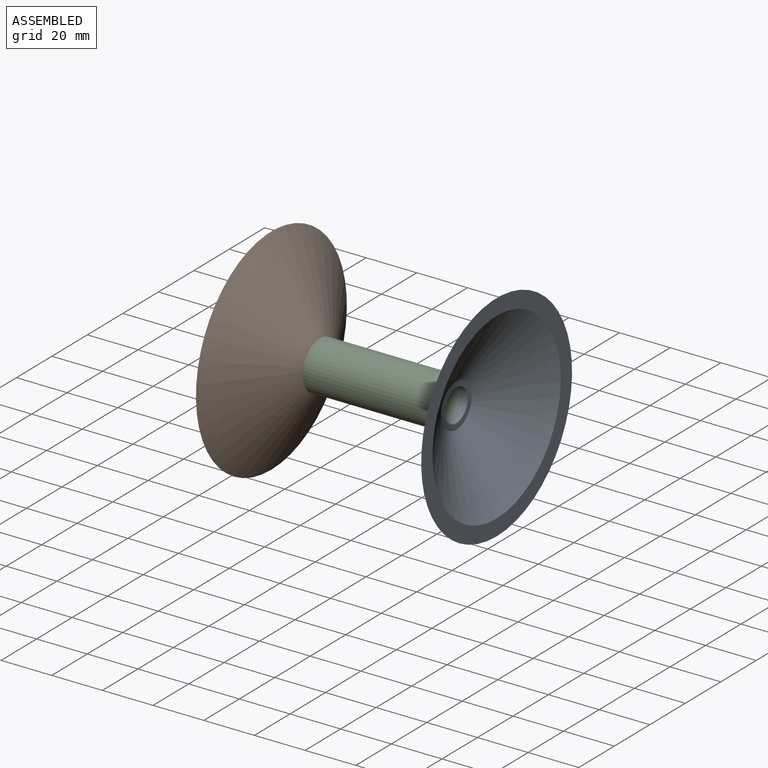
[diagram: assembled view]
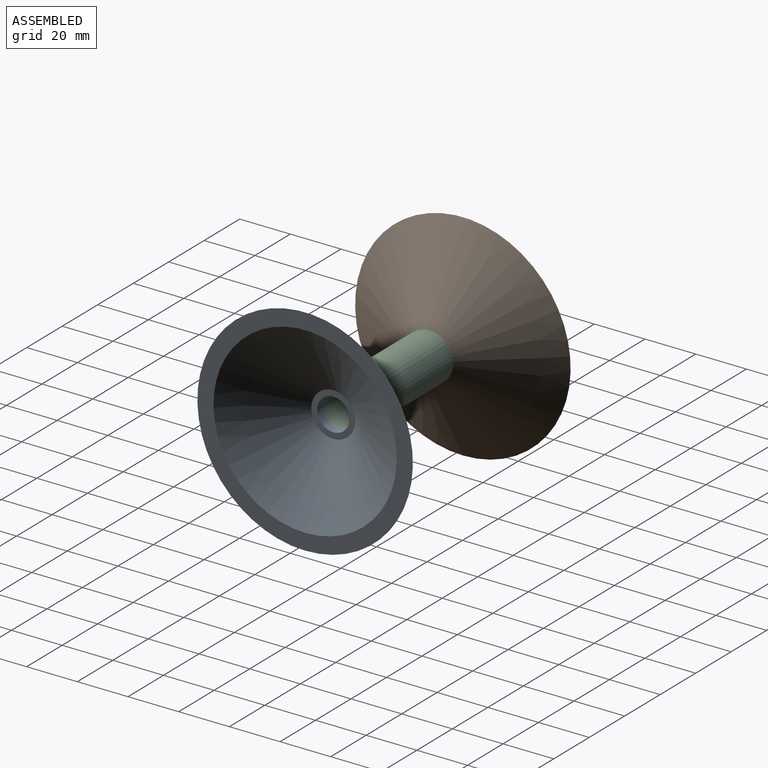
[diagram: assembled view, second angle]
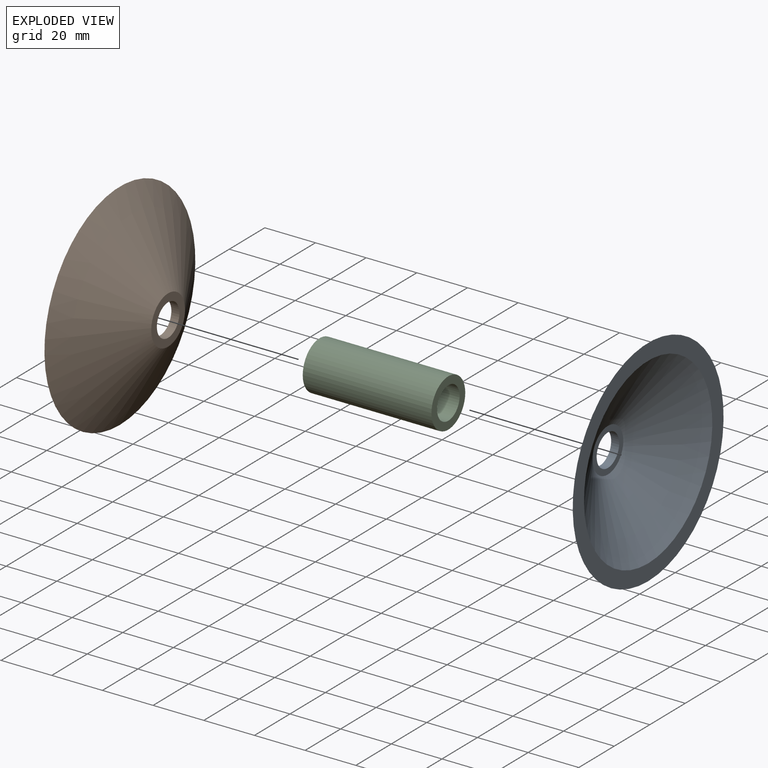
[diagram: exploded view]
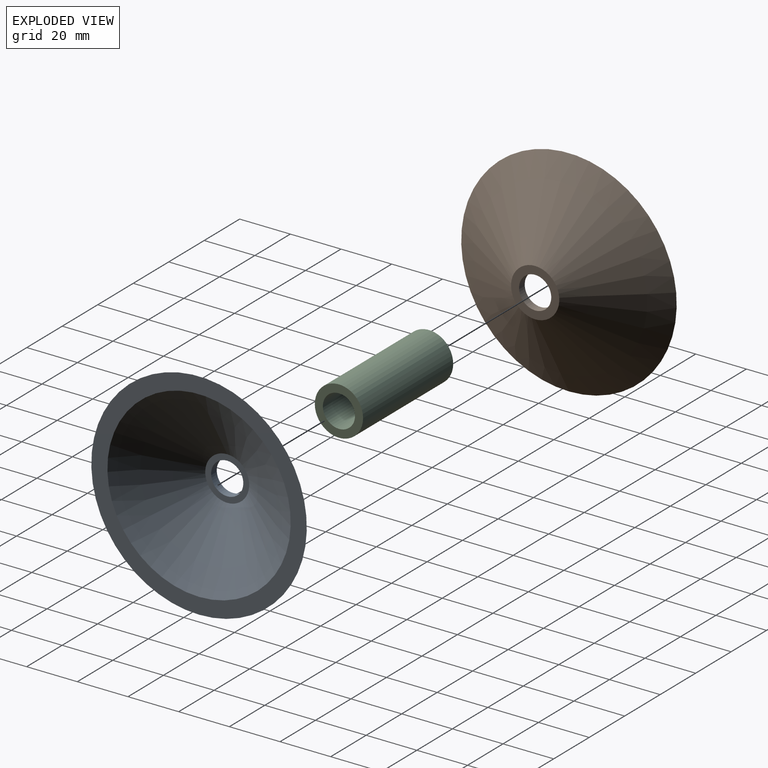
[diagram: exploded view, second angle]
ASSEMBLY  parts=3 mates=2
PART A: 6 faces, bbox 19.1x85x85 mm
  f0: cone r=9.53mm half-angle=60deg, axis (1,0,0), area 6229.6mm2, adj f1,f2
  f1: plane 85.04x85.04mm, normal (1,0,0), area 1569.8mm2, adj f0,f3
  f2: plane 19.05x19.05mm, normal (-1,0,0), area 158.3mm2, adj f0,f5
  f3: cone r=7.94mm half-angle=60deg, axis (1,0,0), area 4473.1mm2, adj f1,f4
  f4: plane 17.35x17.35mm, normal (1,0,0), area 109.7mm2, adj f3,f5
  f5: cylinder r=6.35mm len=12.7mm, axis (1,0,0), area 126.7mm2, adj f2,f4
PART B: 6 faces, bbox 19.1x85x85 mm
  f0: cone r=9.53mm half-angle=60deg, axis (-1,0,0), area 6229.6mm2, adj f1,f2
  f1: plane 85.04x85.04mm, normal (-1,0,0), area 1569.8mm2, adj f0,f3
  f2: plane 19.05x19.05mm, normal (1,0,0), area 158.3mm2, adj f0,f5
  f3: cone r=7.94mm half-angle=60deg, axis (-1,0,0), area 4473.1mm2, adj f1,f4
  f4: plane 17.35x17.35mm, normal (-1,0,0), area 109.7mm2, adj f3,f5
  f5: cylinder r=6.35mm len=12.7mm, axis (-1,0,0), area 126.7mm2, adj f2,f4
PART C: 4 faces, bbox 50.8x19.1x19.1 mm
  f0: cylinder r=9.53mm len=50.8mm, axis (-1,0,0), area 3040.2mm2, adj f1,f2
  f1: plane 19.05x19.05mm, normal (1,0,0), area 158.3mm2, adj f0,f3
  f2: plane 19.05x19.05mm, normal (-1,0,0), area 158.3mm2, adj f0,f3
  f3: cylinder r=6.35mm len=50.8mm, axis (1,0,0), area 2026.8mm2, adj f1,f2
PLACE A t=(80.56,6.12,1.2)mm
PLACE B t=(29.76,5.63,1.68)mm
PLACE C t=(29.76,5.63,1.68)mm
MATE fastened A.f0 <-> C.f0  axis (1,0,0) through (80.56,5.63,1.68)mm
MATE fastened B.f0 <-> C.f0  axis (-1,0,0) through (29.76,5.63,1.68)mm
